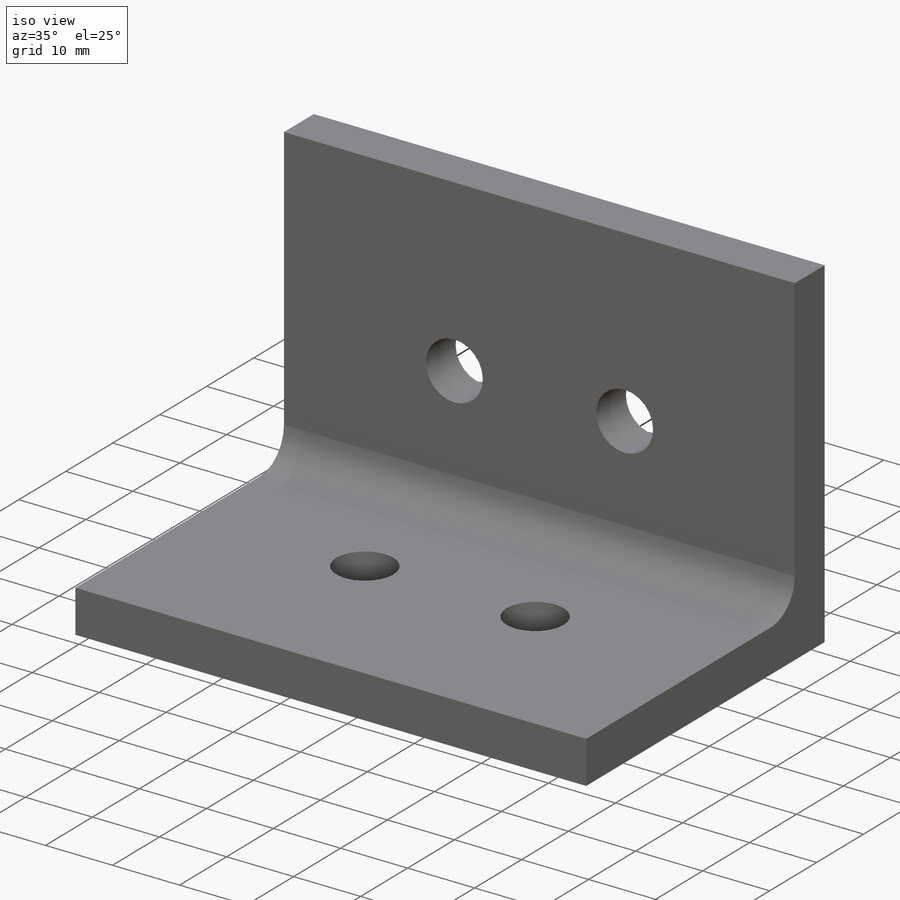
[diagram: iso view]
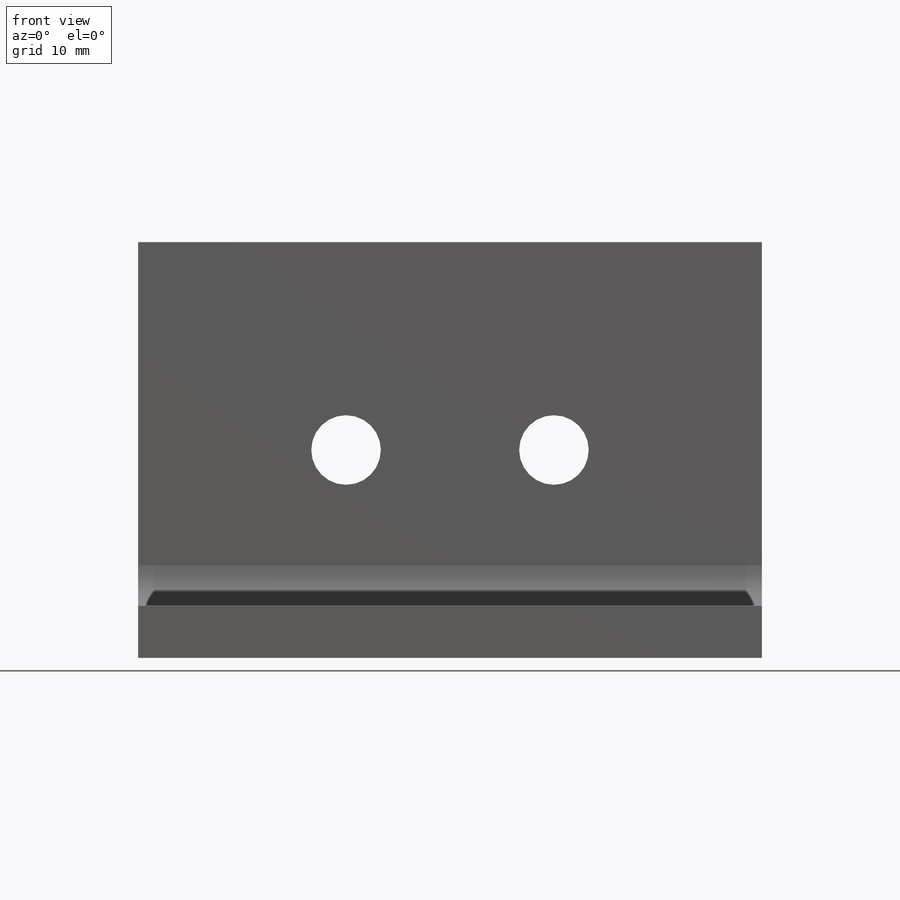
[diagram: front view]
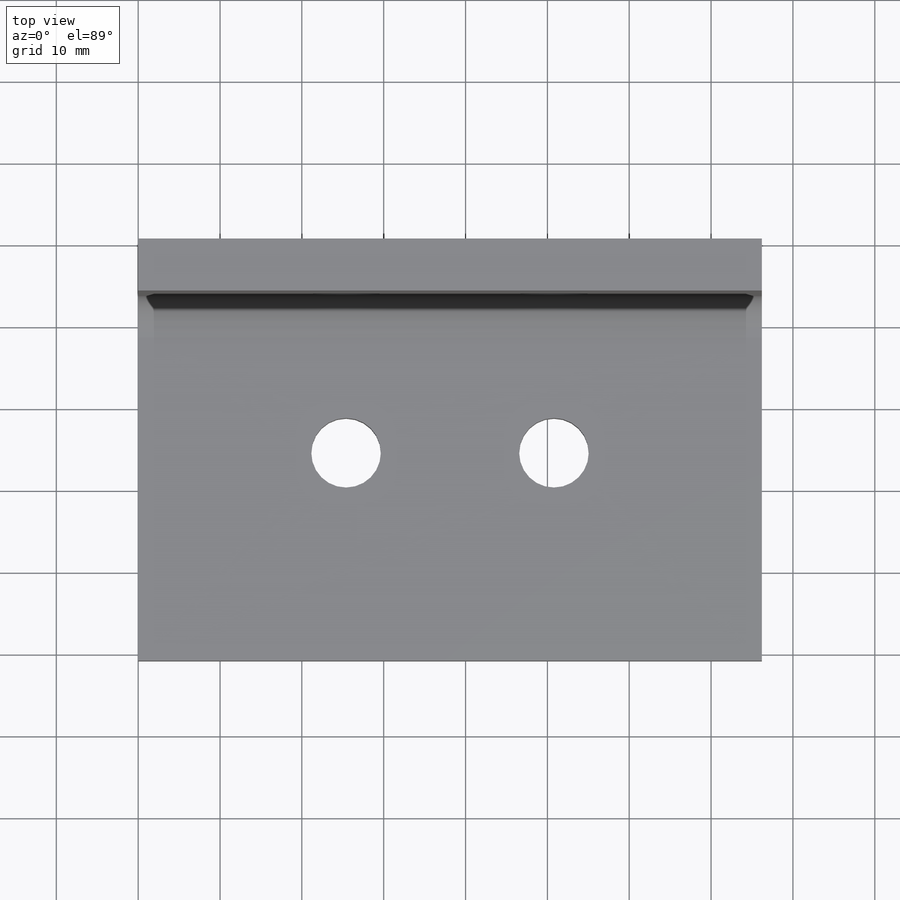
[diagram: top view]
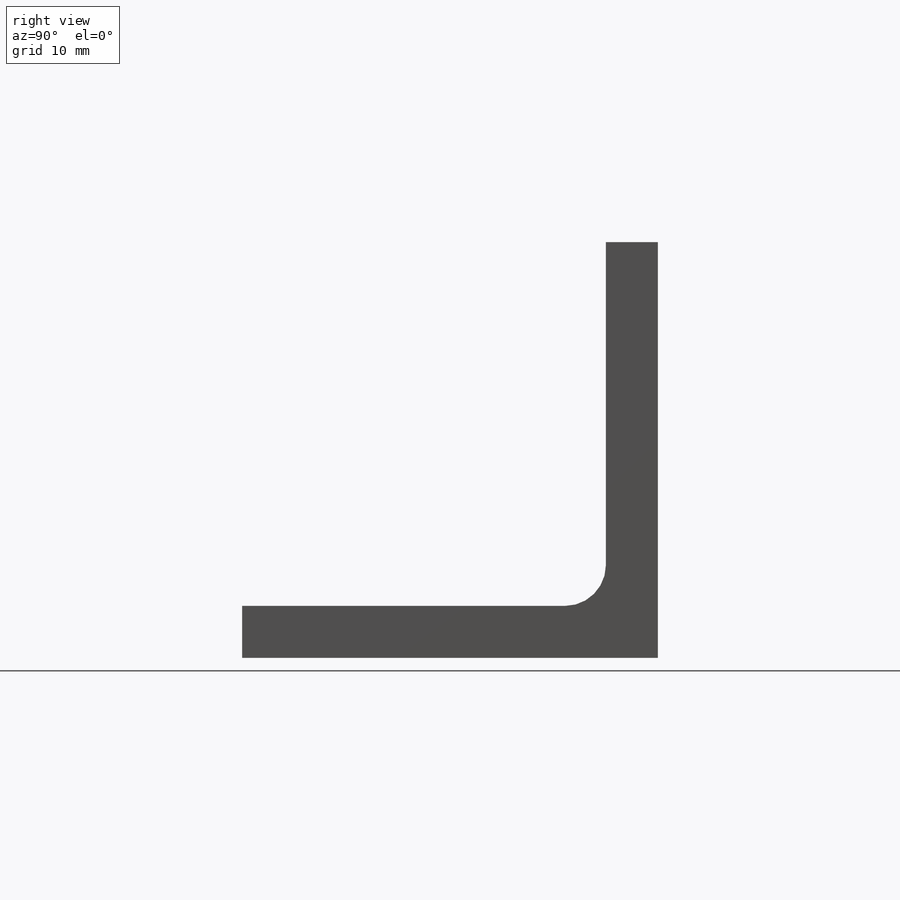
[diagram: right view]
SOLIDWORKS PART (.sldprt)
format: sldprt  version: not decoded by parser v0  size: 212,992 bytes
history: native  units: mm
features: sketch x7, hole x2, material x1, extrude x1, fillet x1 (+12 scaffold rows collapsed)
feature tree (24):
  scaffold x12  (default folders/planes/origin — collapsed)
  material  "Material <not specified>"
  sketch  "Sketch1"  dims[D1=50.8mm D2=50.8mm D3=6.35mm D4=6.35mm]
  extrude  "Boss-Extrude1"  Depth=76.2mm
  sketch  "Sketch2"  dims[D1=25.4mm]
  sketch  "Sketch4"  dims[D1=25.4mm D2=25.4mm D3=25.4mm D4=25.4mm]
  hole  "Tap Drill for M10x1.5 Tap1"  Diameter=8.5mm Depth=6.35mm
  sketch  "Sketch6"  dims[c1.D1=25.4mm c1.D2=44.45mm c2.D1=25.4mm]
  sketch  "Sketch7"  dims[hole-wizard template sketch: 59 standard entries collapsed; hole parameters kept: c18.Thru Hole Dia.=8.5mm c18.Thru Hole Depth=6.35mm]
  hole  "Tap Drill for M10x1.5 Tap2"  Diameter=8.5mm Depth=20mm
  sketch  "Sketch9"
  sketch  "Sketch8"  dims[hole-wizard template sketch: 50 standard entries collapsed; hole parameters above]
  fillet  "Fillet1"  Radius=5mm
decode coverage: 10 of 11 modeling features carry decoded parameters
note: ~ marks probable driven/reference dimensions
note: suppression state not decoded; provenance and decode notes live in map.json
